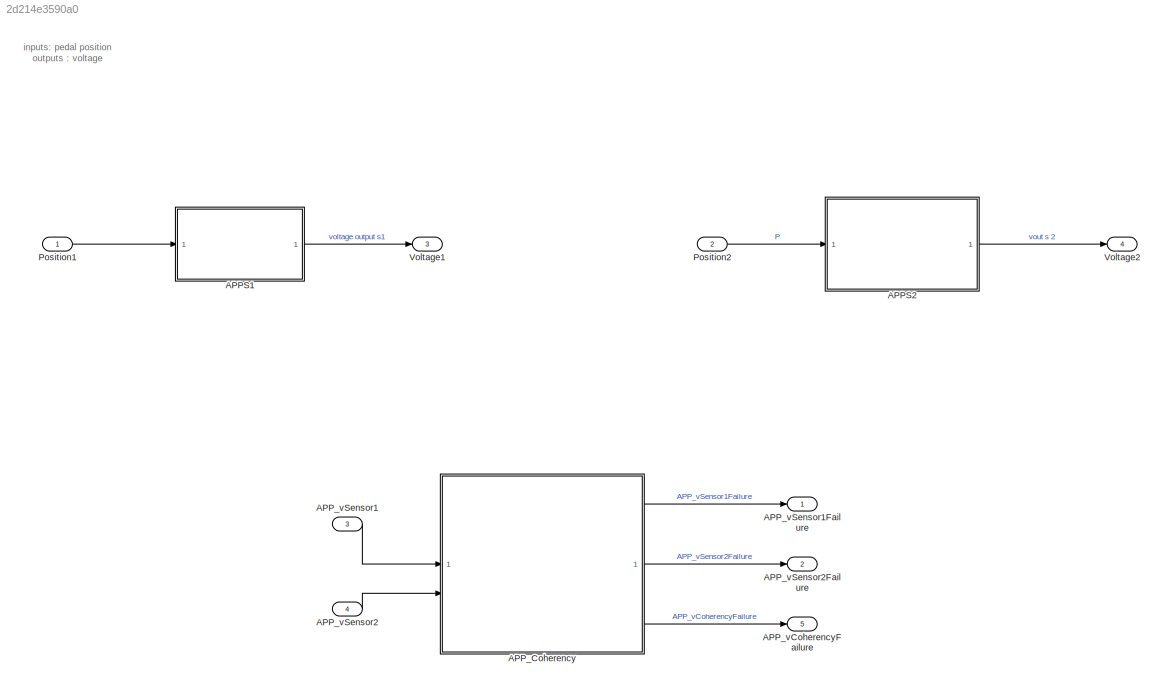
MODEL slx_2d214e3590a0
KIND model
CONFIG AbsTol = auto
CONFIG EnableMultiTasking = off
CONFIG FixedStep = 0.2
CONFIG MaxStep = auto
CONFIG MinStep = auto
CONFIG RelTol = 1e-3
CONFIG SampleTimeConstraint = Unconstrained
CONFIG SolverName = FixedStepDiscrete
CONFIG StartTime = 0.0
CONFIG StopTime = 1
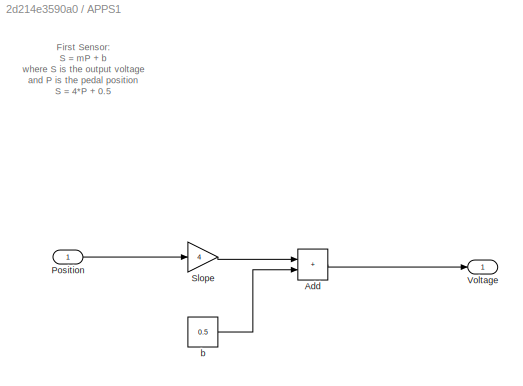
BLOCK [SubSystem] APPS1
BLOCK [Sum] APPS1/Add
  IconShape = rectangular
BLOCK [Inport] APPS1/Position
BLOCK [Gain] APPS1/Slope
  Gain = 4
BLOCK [Outport] APPS1/Voltage
  VectorParamsAs1DForOutWhenUnconnected = off
BLOCK [Constant] APPS1/b 
  Value = 0.5
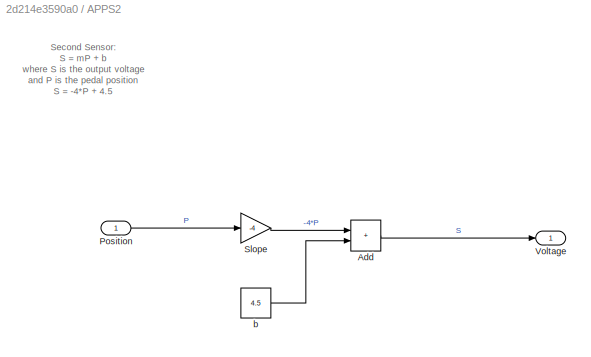
BLOCK [SubSystem] APPS2
BLOCK [Sum] APPS2/Add
  IconShape = rectangular
BLOCK [Inport] APPS2/Position
BLOCK [Gain] APPS2/Slope
  Gain = -4
BLOCK [Outport] APPS2/Voltage
  VectorParamsAs1DForOutWhenUnconnected = off
BLOCK [Constant] APPS2/b 
  Value = 4.5
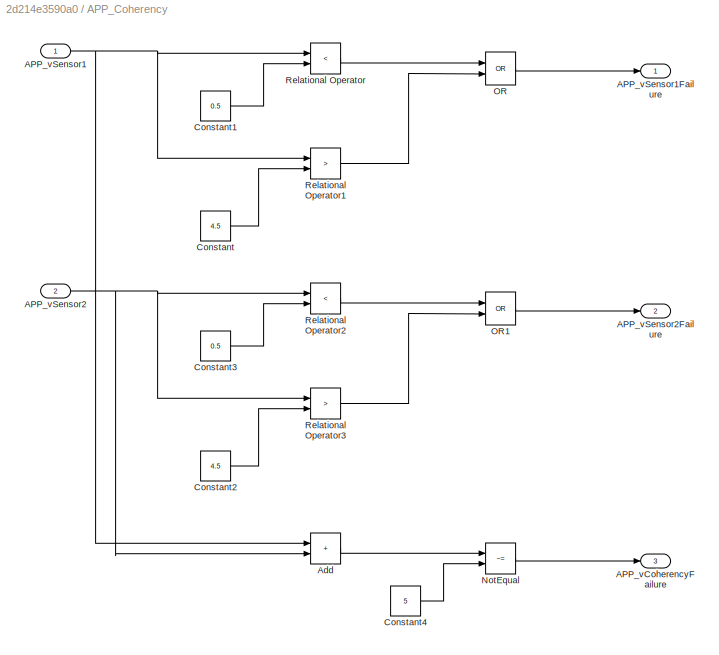
BLOCK [SubSystem] APP_Coherency
  TreatAsAtomicUnit = on
BLOCK [Outport] APP_Coherency/APP_vCoherencyFailure
  Port = 3
  VectorParamsAs1DForOutWhenUnconnected = off
BLOCK [Inport] APP_Coherency/APP_vSensor1
BLOCK [Outport] APP_Coherency/APP_vSensor1Failure
  VectorParamsAs1DForOutWhenUnconnected = off
BLOCK [Inport] APP_Coherency/APP_vSensor2
  Port = 2
BLOCK [Outport] APP_Coherency/APP_vSensor2Failure
  Port = 2
  VectorParamsAs1DForOutWhenUnconnected = off
BLOCK [Sum] APP_Coherency/Add
  IconShape = rectangular
BLOCK [Constant] APP_Coherency/Constant
  Value = 4.5
BLOCK [Constant] APP_Coherency/Constant1
  Value = 0.5
BLOCK [Constant] APP_Coherency/Constant2
  Value = 4.5
BLOCK [Constant] APP_Coherency/Constant3
  Value = 0.5
BLOCK [Constant] APP_Coherency/Constant4
  Value = 5
BLOCK [RelationalOperator] APP_Coherency/NotEqual
  InputSameDT = off
  Operator = ~=
  OutDataTypeStr = boolean
  RndMeth = Simplest
BLOCK [Logic] APP_Coherency/OR
  AllPortsSameDT = off
  Operator = OR
  OutDataTypeStr = boolean
BLOCK [Logic] APP_Coherency/OR1
  AllPortsSameDT = off
  Operator = OR
  OutDataTypeStr = boolean
BLOCK [RelationalOperator] APP_Coherency/Relational Operator
  InputSameDT = off
  Operator = <
  OutDataTypeStr = boolean
  RndMeth = Simplest
BLOCK [RelationalOperator] APP_Coherency/Relational Operator1
  InputSameDT = off
  Operator = >
  OutDataTypeStr = boolean
  RndMeth = Simplest
BLOCK [RelationalOperator] APP_Coherency/Relational Operator2
  InputSameDT = off
  Operator = <
  OutDataTypeStr = boolean
  RndMeth = Simplest
BLOCK [RelationalOperator] APP_Coherency/Relational Operator3
  InputSameDT = off
  Operator = >
  OutDataTypeStr = boolean
  RndMeth = Simplest
BLOCK [Outport] APP_vCoherencyFailure
  Port = 5
  VectorParamsAs1DForOutWhenUnconnected = off
BLOCK [Inport] APP_vSensor1
  Port = 3
BLOCK [Outport] APP_vSensor1Failure
  VectorParamsAs1DForOutWhenUnconnected = off
BLOCK [Inport] APP_vSensor2
  Port = 4
BLOCK [Outport] APP_vSensor2Failure
  Port = 2
  VectorParamsAs1DForOutWhenUnconnected = off
BLOCK [Inport] Position1
BLOCK [Inport] Position2
  Port = 2
BLOCK [Outport] Voltage1
  Port = 3
  VectorParamsAs1DForOutWhenUnconnected = off
BLOCK [Outport] Voltage2
  Port = 4
  VectorParamsAs1DForOutWhenUnconnected = off
ANNOTATION (root): inputs: pedal position outputs : voltage
ANNOTATION APPS1: First Sensor: S = mP + b where S is the output voltage and P is the pedal position S = 4*P + 0.5
ANNOTATION APPS2: Second Sensor: S = mP + b where S is the output voltage and P is the pedal position S = -4*P + 4.5
LINE APPS1/Add:1 -> APPS1/Voltage:1
LINE APPS1/Position:1 -> APPS1/Slope:1
LINE APPS1/Slope:1 -> APPS1/Add:1
LINE APPS1/b :1 -> APPS1/Add:2
LINE APPS1:1 -> Voltage1:1
LINE APPS2/Add:1 -> APPS2/Voltage:1
LINE APPS2/Position:1 -> APPS2/Slope:1
LINE APPS2/Slope:1 -> APPS2/Add:1
LINE APPS2/b :1 -> APPS2/Add:2
LINE APPS2:1 -> Voltage2:1
NET APP_Coherency/APP_vSensor1:1 -> APP_Coherency/Add:1, APP_Coherency/Relational Operator1:1, APP_Coherency/Relational Operator:1
NET APP_Coherency/APP_vSensor2:1 -> APP_Coherency/Add:2, APP_Coherency/Relational Operator2:1, APP_Coherency/Relational Operator3:1
LINE APP_Coherency/Add:1 -> APP_Coherency/NotEqual:1
LINE APP_Coherency/Constant1:1 -> APP_Coherency/Relational Operator:2
LINE APP_Coherency/Constant2:1 -> APP_Coherency/Relational Operator3:2
LINE APP_Coherency/Constant3:1 -> APP_Coherency/Relational Operator2:2
LINE APP_Coherency/Constant4:1 -> APP_Coherency/NotEqual:2
LINE APP_Coherency/Constant:1 -> APP_Coherency/Relational Operator1:2
LINE APP_Coherency/NotEqual:1 -> APP_Coherency/APP_vCoherencyFailure:1
LINE APP_Coherency/OR1:1 -> APP_Coherency/APP_vSensor2Failure:1
LINE APP_Coherency/OR:1 -> APP_Coherency/APP_vSensor1Failure:1
LINE APP_Coherency/Relational Operator1:1 -> APP_Coherency/OR:2
LINE APP_Coherency/Relational Operator2:1 -> APP_Coherency/OR1:1
LINE APP_Coherency/Relational Operator3:1 -> APP_Coherency/OR1:2
LINE APP_Coherency/Relational Operator:1 -> APP_Coherency/OR:1
LINE APP_Coherency:1 -> APP_vSensor1Failure:1
LINE APP_Coherency:2 -> APP_vSensor2Failure:1
LINE APP_Coherency:3 -> APP_vCoherencyFailure:1
LINE APP_vSensor1:1 -> APP_Coherency:1
LINE APP_vSensor2:1 -> APP_Coherency:2
LINE Position1:1 -> APPS1:1
LINE Position2:1 -> APPS2:1
note: NET lines group one-source signal fan-out (src -> all destinations, sorted); 1:1 wires keep LINE
